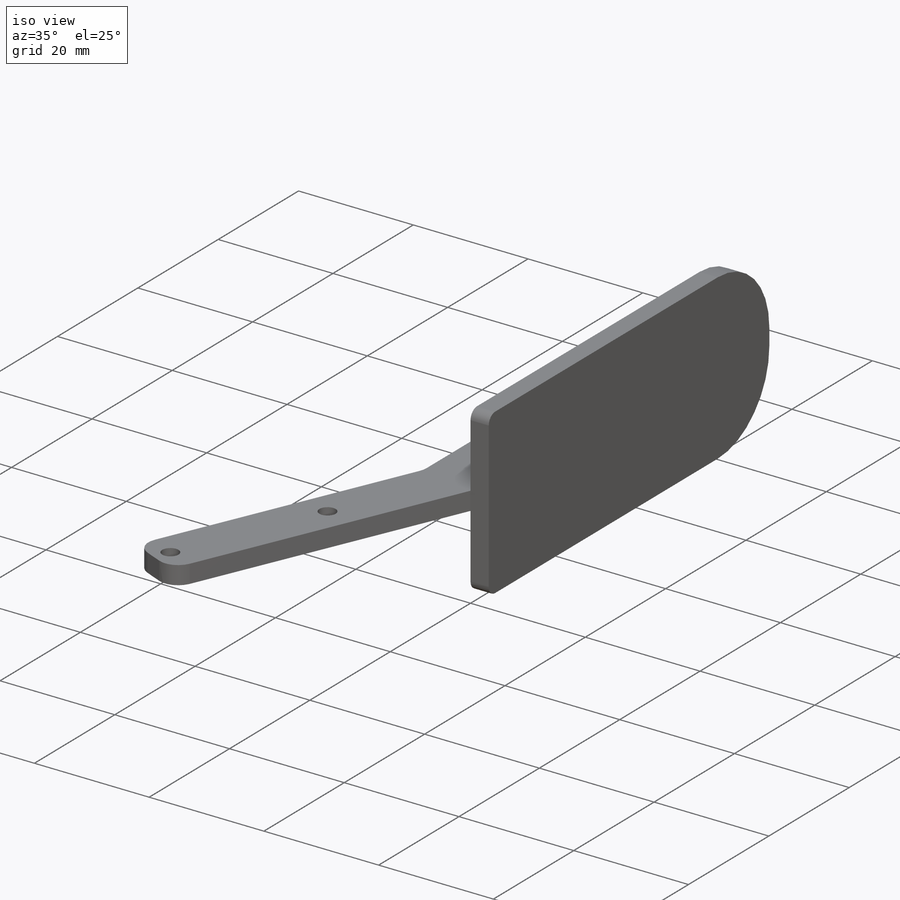
[diagram: iso view]
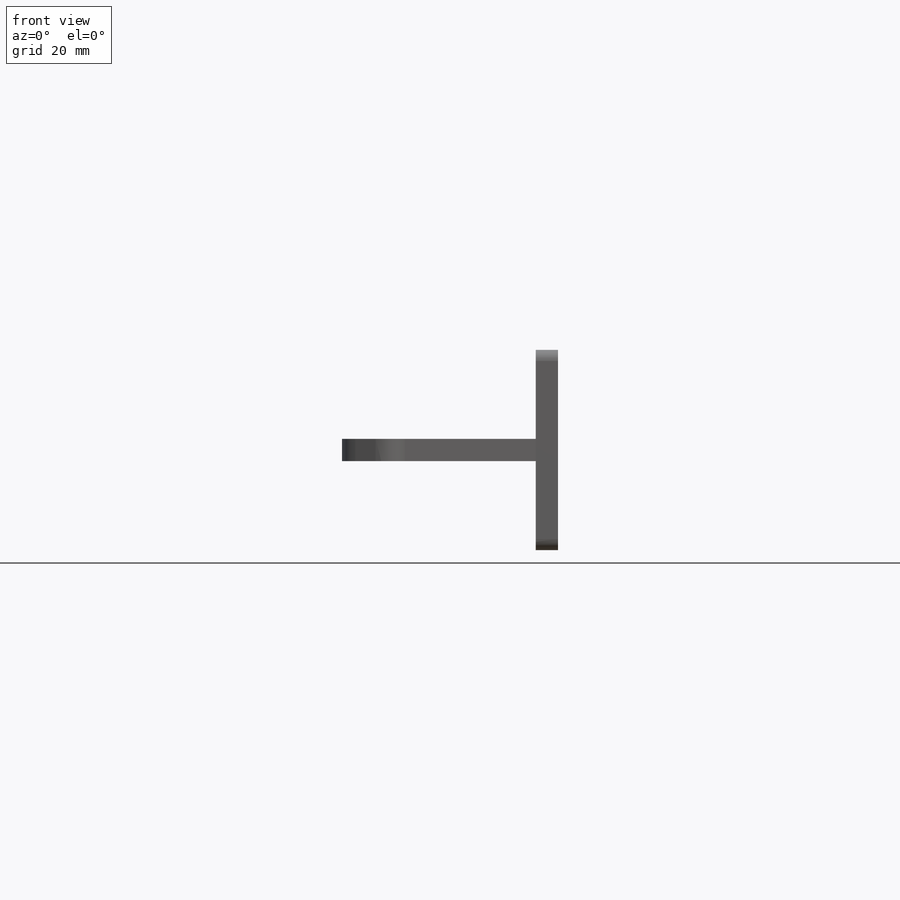
[diagram: front view]
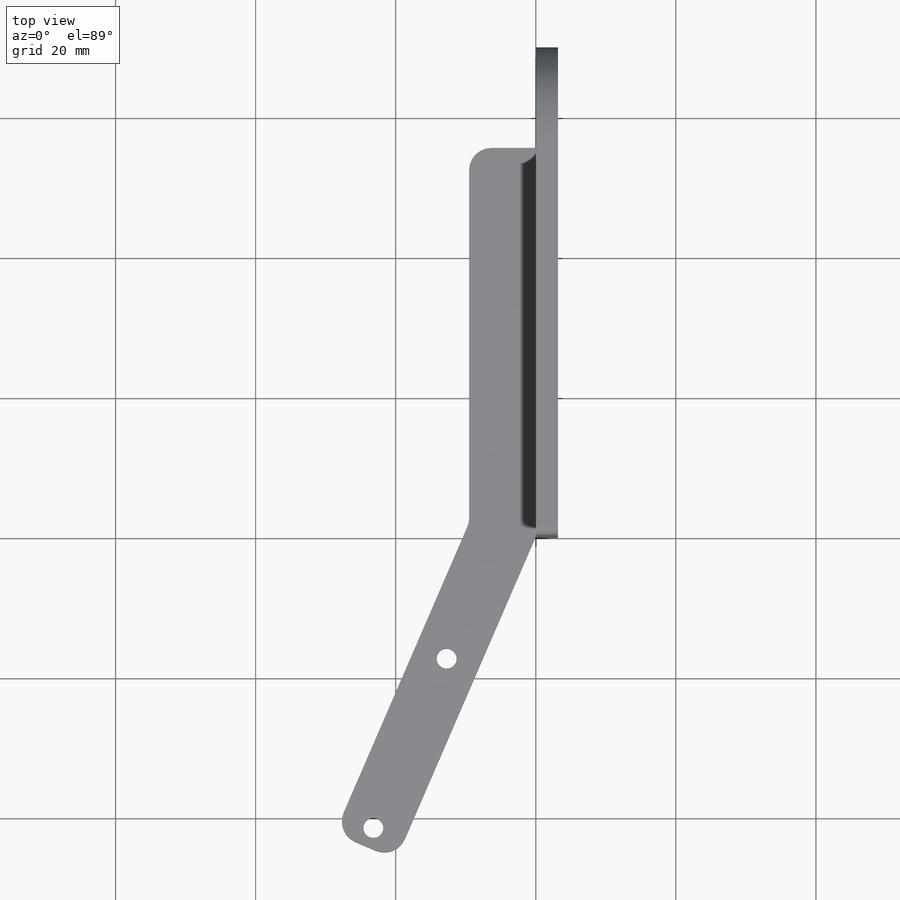
[diagram: top view]
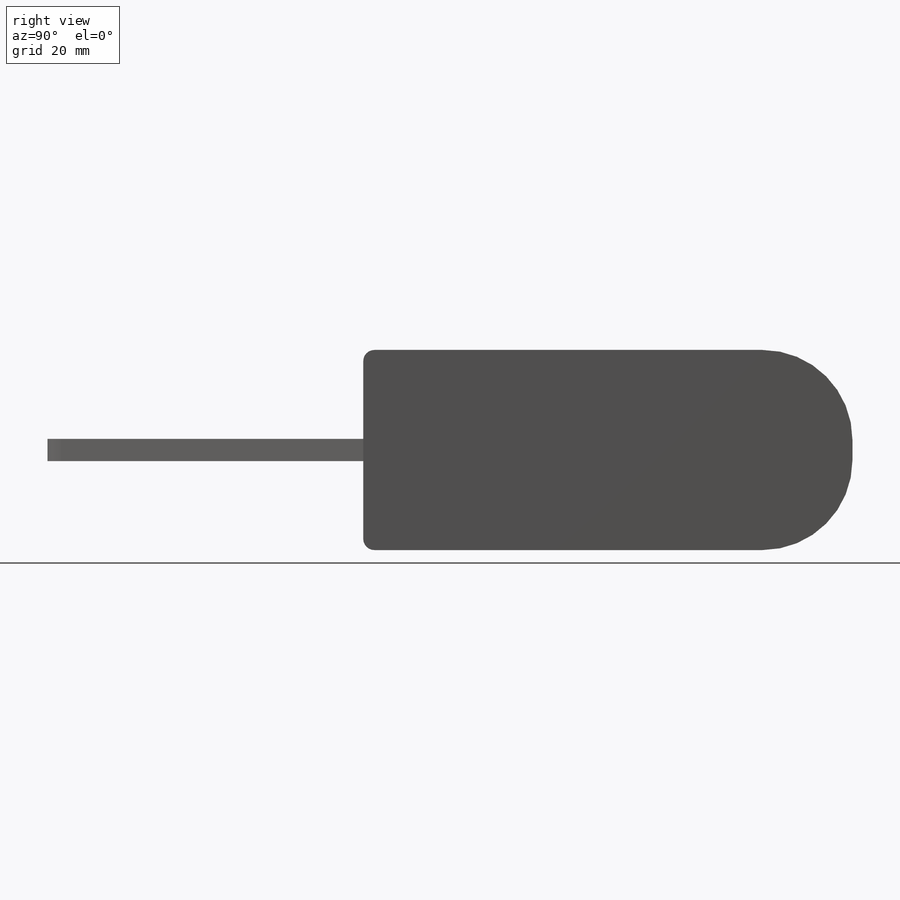
[diagram: right view]
SOLIDWORKS PART (.sldprt)
format: sldprt  version: not decoded by parser v0  size: 234,496 bytes
history: native  units: mm
features: sketch x4, fillet x3, extrude x2, material x1, hole x1, pattern_linear x1 (+11 scaffold rows collapsed)
feature tree (23):
  scaffold x11  (default folders/planes/origin — collapsed)
  material  "Material <not specified>"
  sketch  "Sketch1"  dims[D1=28.575mm D2=69.85mm]
  extrude  "Boss-Extrude1"  Depth=3.175mm
  fillet  "Fillet1"  Radius=12.8524mm
  sketch  "Sketch4"  dims[D1=9.525mm D2=14.351mm D3=101.6mm D4=48.26mm]
  extrude  "Boss-Extrude2"  Depth=3.175mm
  fillet  "Fillet2"  Radius=1.5875mm
  fillet  "Fillet3"  Radius=3.175mm
  hole  "Hole1"  Diameter=2.8448mm Depth=15.875mm
  sketch  "Sketch6"  dims[D1=2.8448mm]
  sketch  "Sketch5"  dims[Diameter=2.8448mm Depth=15.875mm]
  pattern_linear  "LPattern1"  Count1=2 Count2=1 Spacing1=26.3525mm Spacing2=2.54mm
decode coverage: 11 of 11 modeling features carry decoded parameters
note: suppression state not decoded; provenance and decode notes live in map.json
